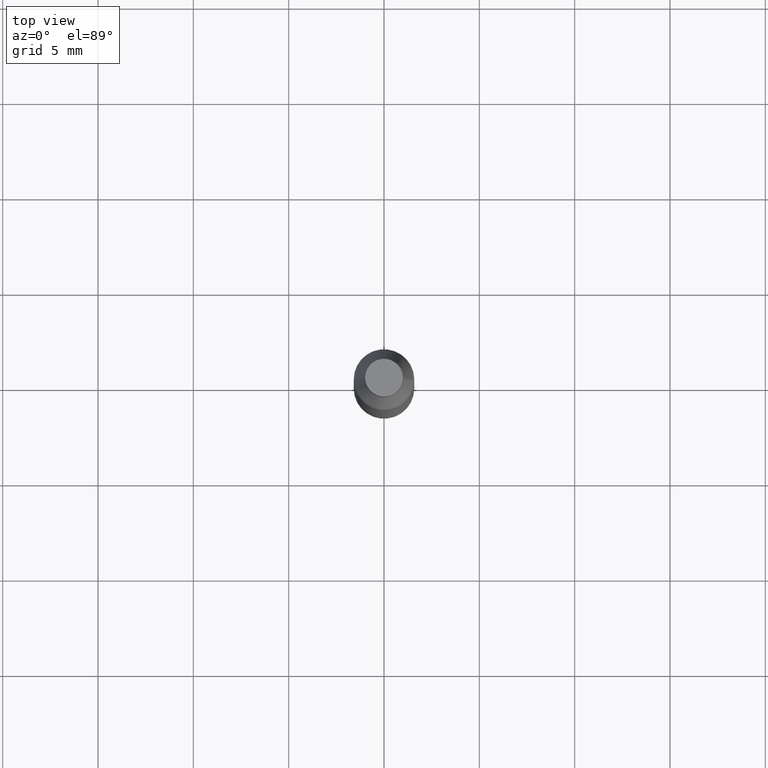
[diagram: clean part render]
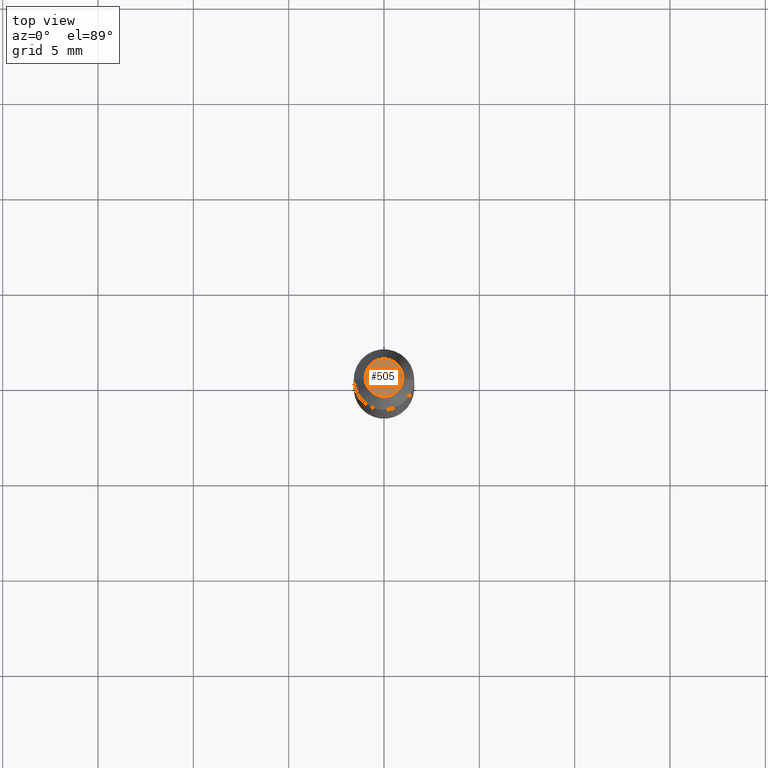
[diagram: same view with one face highlighted and labeled with its STEP entity id]
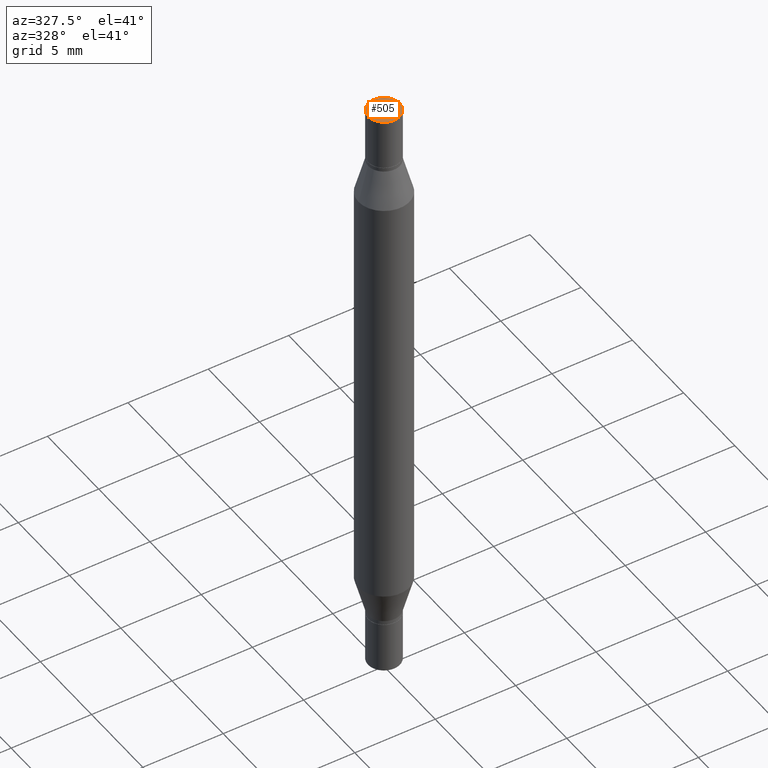
[diagram: same view with one face highlighted and labeled with its STEP entity id]
A machine part, top view. The second image highlights one B-rep face of the part: STEP entity #505.
A second angle (auxiliary view) of the same face is appended — the face is thin or edge-on in the first view.
In plain terms, the highlighted planar face has unit normal (-0, -0, -1).
Its self-contained STEP definition (entity closure, byte-faithful):
#37 = CIRCLE ( 'NONE', #368, 0.03905000000000000138 ) ;
#130 = VERTEX_POINT ( 'NONE', #490 ) ;
#155 = EDGE_CURVE ( 'NONE', #372, #130, #37, .T. ) ;
#214 = EDGE_LOOP ( 'NONE', ( #606, #597 ) ) ;
#244 = CARTESIAN_POINT ( 'NONE',  ( 3.668203209277704895E-29, 2.428170884860868470E-19, 5.463695987328526437E-16 ) ) ;
#285 = PLANE ( 'NONE',  #354 ) ;
#305 = DIRECTION ( 'NONE',  ( 2.445468806185136597E-29, 3.491805094961124077E-15, 1.000000000000000000 ) ) ;
#331 = DIRECTION ( 'NONE',  ( 2.445468806185136597E-29, 3.491805094961124077E-15, 1.000000000000000000 ) ) ;
#351 = DIRECTION ( 'NONE',  ( 1.000000000000000000, -6.982962677686265922E-15, 2.260776888683160832E-33 ) ) ;
#354 = AXIS2_PLACEMENT_3D ( 'NONE', #810, #665, #351 ) ;
#357 = FACE_OUTER_BOUND ( 'NONE', #214, .T. ) ;
#368 = AXIS2_PLACEMENT_3D ( 'NONE', #244, #331, #871 ) ;
#372 = VERTEX_POINT ( 'NONE', #566 ) ;
#394 = CARTESIAN_POINT ( 'NONE',  ( 3.668203209277704895E-29, 2.428170884860868470E-19, 5.463695987328526437E-16 ) ) ;
#490 = CARTESIAN_POINT ( 'NONE',  ( 0.03905000000000000138, -2.724418754751626287E-16, 5.463695987328526437E-16 ) ) ;
#505 = ADVANCED_FACE ( 'NONE', ( #357 ), #285, .F. ) ;
#566 = CARTESIAN_POINT ( 'NONE',  ( -0.03905000000000000138, 4.990744546639402167E-17, 5.463695987328533339E-16 ) ) ;
#597 = ORIENTED_EDGE ( 'NONE', *, *, #155, .T. ) ;
#606 = ORIENTED_EDGE ( 'NONE', *, *, #631, .T. ) ;
#631 = EDGE_CURVE ( 'NONE', #130, #372, #778, .T. ) ;
#665 = DIRECTION ( 'NONE',  ( -2.438088387897959208E-29, -3.491805094961123683E-15, -1.000000000000000000 ) ) ;
#778 = CIRCLE ( 'NONE', #817, 0.03905000000000000138 ) ;
#810 = CARTESIAN_POINT ( 'NONE',  ( 3.576687321579069994E-29, -1.308131428568106629E-16, 5.463695987328526437E-16 ) ) ;
#817 = AXIS2_PLACEMENT_3D ( 'NONE', #394, #305, #829 ) ;
#829 = DIRECTION ( 'NONE',  ( 1.000000000000000000, -6.982962677686266711E-15, 0.000000000000000000 ) ) ;
#871 = DIRECTION ( 'NONE',  ( 1.000000000000000000, -6.982962677686266711E-15, 0.000000000000000000 ) ) ;